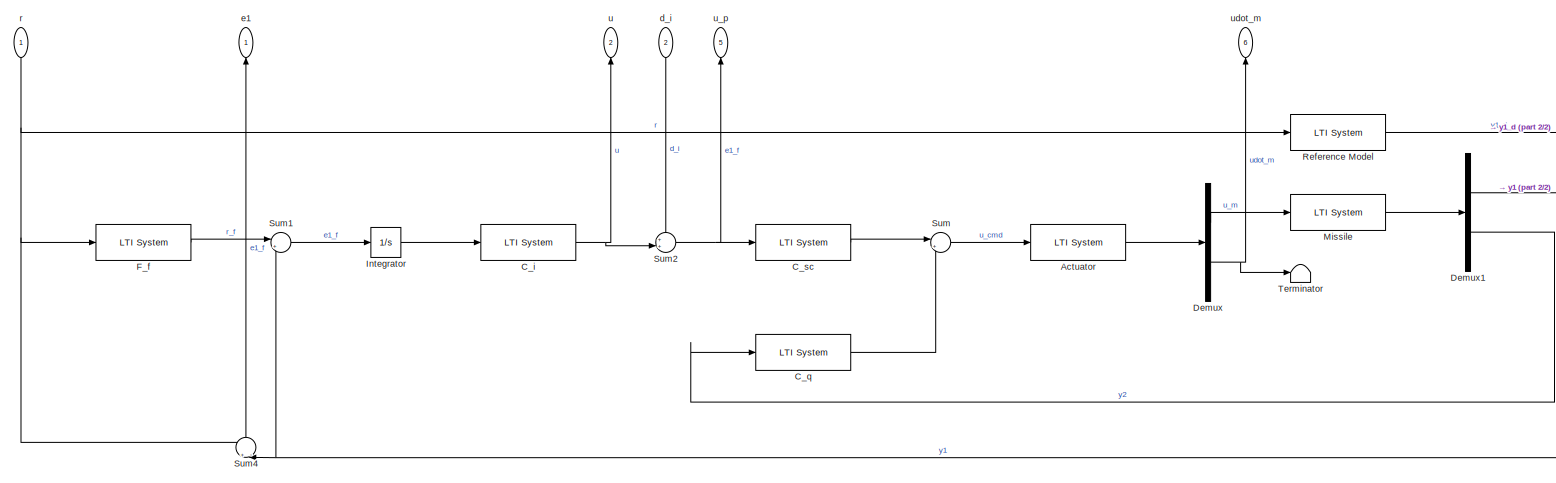
[diagram: root canvas - part 1/2, most of the canvas]
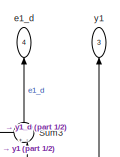
[diagram: root canvas - part 2/2, top right region]
MODEL slx_1bea31c3c763
KIND model
CONFIG AbsTol = auto
CONFIG EnableMultiTasking = off
CONFIG FixedStep = auto
CONFIG MaxStep = auto
CONFIG MinStep = auto
CONFIG RelTol = 1e-6
CONFIG SampleTimeConstraint = Unconstrained
CONFIG SolverName = VariableStepAuto
CONFIG StartTime = 0.0
CONFIG StopTime = 10.0
BLOCK [Reference] Actuator  REF=cstblocks/LTI System
  SourceBlock = cstblocks/LTI System
  SourceType = LTI Block
BLOCK [Reference] C_i  REF=cstblocks/LTI System
  SourceBlock = cstblocks/LTI System
  SourceType = LTI Block
BLOCK [Reference] C_q  REF=cstblocks/LTI System
  SourceBlock = cstblocks/LTI System
  SourceType = LTI Block
BLOCK [Reference] C_sc  REF=cstblocks/LTI System
  SourceBlock = cstblocks/LTI System
  SourceType = LTI Block
BLOCK [Demux] Demux
  Outputs = 2
BLOCK [Demux] Demux1
  Outputs = 2
BLOCK [Reference] F_f  REF=cstblocks/LTI System
  SourceBlock = cstblocks/LTI System
  SourceType = LTI Block
BLOCK [Integrator] Integrator
BLOCK [Reference] Missile  REF=cstblocks/LTI System
  SourceBlock = cstblocks/LTI System
  SourceType = LTI Block
BLOCK [Reference] Reference Model  REF=cstblocks/LTI System
  SourceBlock = cstblocks/LTI System
  SourceType = LTI Block
BLOCK [Sum] Sum
  Inputs = |+-
BLOCK [Sum] Sum1
  Inputs = |+-
BLOCK [Sum] Sum2
  Inputs = ++|
BLOCK [Sum] Sum3
  Inputs = +-|
  NameLocation = right
BLOCK [Sum] Sum4
  Inputs = +|-
  NameLocation = right
BLOCK [Terminator] Terminator
BLOCK [Inport] d_i
  NameLocation = left
  Port = 2
BLOCK [Outport] e1
  NameLocation = right
BLOCK [Outport] e1_d
  NameLocation = right
  Port = 4
BLOCK [Inport] r
  NameLocation = left
BLOCK [Outport] u
  NameLocation = right
  Port = 2
BLOCK [Outport] u_p
  NameLocation = right
  Port = 5
BLOCK [Outport] udot_m
  NameLocation = right
  Port = 6
BLOCK [Outport] y1
  NameLocation = right
  Port = 3
LINE Actuator:1 -> Demux:1
NET C_i:1 -> Sum2:2, u:1
LINE C_q:1 -> Sum:2
LINE C_sc:1 -> Sum:1
NET Demux1:1 -> Sum1:2, Sum3:2, Sum4:2, y1:1
LINE Demux1:2 -> C_q:1
LINE Demux:1 -> Missile:1
NET Demux:2 -> Terminator:1, udot_m:1
LINE F_f:1 -> Sum1:1
LINE Integrator:1 -> C_i:1
LINE Missile:1 -> Demux1:1
LINE Reference Model:1 -> Sum3:1
LINE Sum1:1 -> Integrator:1
NET Sum2:1 -> C_sc:1, u_p:1
LINE Sum3:1 -> e1_d:1
LINE Sum4:1 -> e1:1
LINE Sum:1 -> Actuator:1
LINE d_i:1 -> Sum2:1
NET r:1 -> F_f:1, Reference Model:1, Sum4:1
note: NET lines group one-source signal fan-out (src -> all destinations, sorted); 1:1 wires keep LINE
